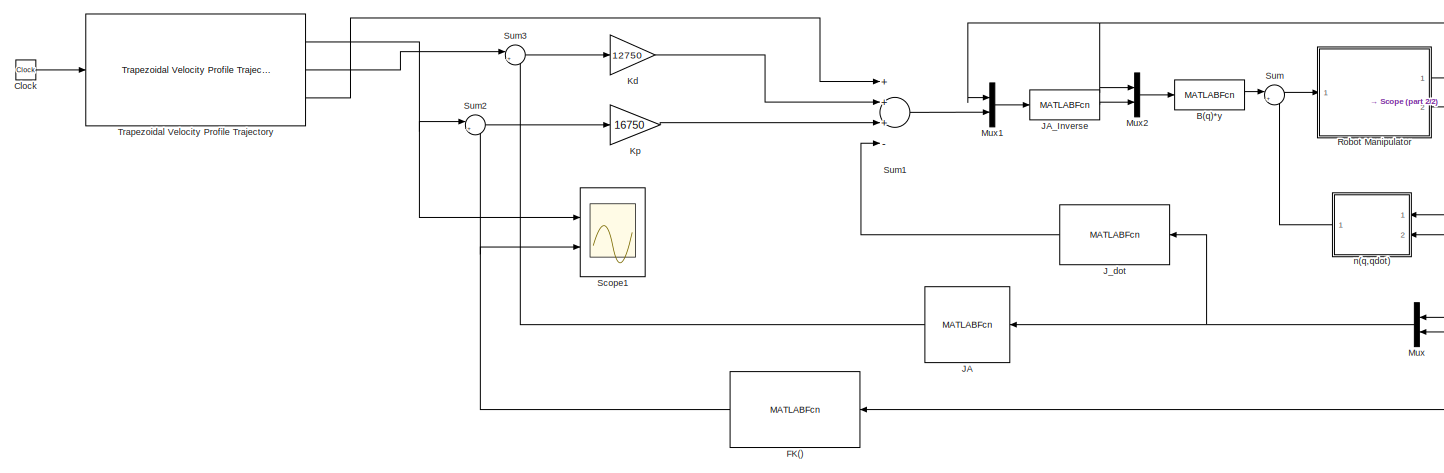
[diagram: root canvas - part 1/2, most of the canvas]
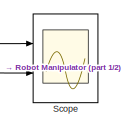
[diagram: root canvas - part 2/2, top right region]
MODEL slx_6c4f4f42cd4c
KIND model
CONFIG AbsTol = auto
CONFIG EnableMultiTasking = off
CONFIG FixedStep = auto
CONFIG MaxStep = auto
CONFIG MinStep = auto
CONFIG RelTol = 1e-3
CONFIG SampleTimeConstraint = Unconstrained
CONFIG Solver = VariableStepAuto
CONFIG SolverName = VariableStepAuto
CONFIG StartTime = 0.0
CONFIG StopTime = 10.0
BLOCK [MATLABFcn] B(q)*y
  MATLABFcn = B_matrix(u)*u(n_links+1:end,1)
  Ports = [1, 1]
BLOCK [Clock] Clock
BLOCK [MATLABFcn] FK()
  MATLABFcn = fwdKine(u)
  Ports = [1, 1]
BLOCK [MATLABFcn] JA
  MATLABFcn = analyticalJacobian(u)*u(n_links+1:end,1)
  Ports = [1, 1]
BLOCK [MATLABFcn] JA_Inverse
  MATLABFcn = inv(analyticalJacobian(u))*u(n_links+1:end,1)
  Ports = [1, 1]
BLOCK [MATLABFcn] J_dot
  MATLABFcn = JacobianDerivative(u)
  Ports = [1, 1]
BLOCK [Gain] Kd
  Gain = 12750
  OutDataTypeStr = Inherit: Inherit via internal rule
  ParamDataTypeStr = Inherit: Inherit via internal rule
  SaturateOnIntegerOverflow = off
BLOCK [Gain] Kp
  Gain = 16750
  OutDataTypeStr = Inherit: Inherit via internal rule
  ParamDataTypeStr = Inherit: Inherit via internal rule
  SaturateOnIntegerOverflow = off
BLOCK [Mux] Mux
  DisplayOption = bar
  Inputs = 2
  Ports = [2, 1]
BLOCK [Mux] Mux1
  DisplayOption = bar
  Inputs = 2
  Ports = [2, 1]
BLOCK [Mux] Mux2
  DisplayOption = bar
  Inputs = 2
  Ports = [2, 1]
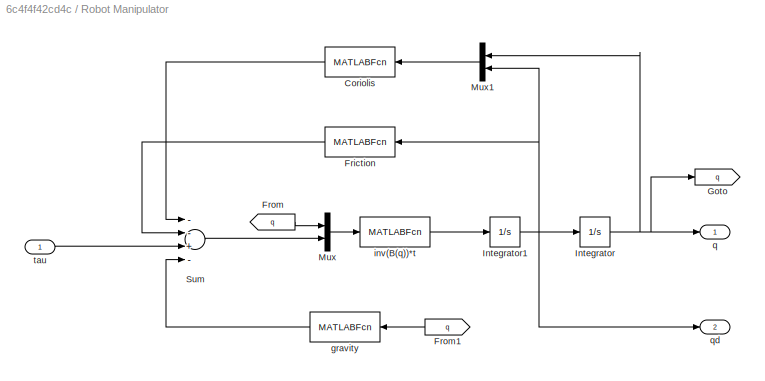
BLOCK [SubSystem] Robot Manipulator
  Ports = [1, 2]
  RequestExecContextInheritance = off
BLOCK [MATLABFcn] Robot Manipulator/Coriolis
  MATLABFcn = C_matrix(u)*u(n_links+1:end,1)
  Ports = [1, 1]
BLOCK [MATLABFcn] Robot Manipulator/Friction
  MATLABFcn = Friction(u)
  Ports = [1, 1]
BLOCK [From] Robot Manipulator/From
  GotoTag = q
BLOCK [From] Robot Manipulator/From1
  GotoTag = q
BLOCK [Goto] Robot Manipulator/Goto
  GotoTag = q
BLOCK [Integrator] Robot Manipulator/Integrator
  InitialCondition = [pi/3; -pi/3 ;0]
  Ports = [1, 1]
BLOCK [Integrator] Robot Manipulator/Integrator1
  InitialCondition = [0;0;0]
  Ports = [1, 1]
BLOCK [Mux] Robot Manipulator/Mux
  DisplayOption = bar
  Inputs = 2
  Ports = [2, 1]
BLOCK [Mux] Robot Manipulator/Mux1
  DisplayOption = bar
  Inputs = 2
  Ports = [2, 1]
BLOCK [Sum] Robot Manipulator/Sum
  Inputs = --+-
  Ports = [4, 1]
BLOCK [MATLABFcn] Robot Manipulator/gravity
  MATLABFcn = GravityVector(u)
  Ports = [1, 1]
BLOCK [MATLABFcn] Robot Manipulator/inv(B(q))*t
  MATLABFcn = inv(B_matrix(u))*u(n_links+1:end,1)
  Ports = [1, 1]
BLOCK [Outport] Robot Manipulator/q
  IconDisplay = Port number
BLOCK [Outport] Robot Manipulator/qd
  IconDisplay = Port number
  Port = 2
BLOCK [Inport] Robot Manipulator/tau
  IconDisplay = Port number
BLOCK [Scope] Scope
  Floating = off
  NumInputPorts = 2
  Ports = [2]
  ScopeSpecificationString = Simulink.scopes.TimeScopeBlockCfg('CurrentConfiguration', extmgr.ConfigurationSet(extmgr.Configuration('Core','General UI',true),extmgr.Configuration('Core','Source UI',true),extmgr.Configuration('Sources','WiredSimulink',true),extmgr.Configuration('Visuals','Time Domain',true,'SerializedDisplays',{struct('MinYLimReal','-3.41638','MaxYLimReal','4.32596','YLabelReal','','MinYLimMag','0.00000','MaxY...<+2075ch>
BLOCK [Scope] Scope1
  Floating = off
  NumInputPorts = 2
  Ports = [2]
  ScopeSpecificationString = Simulink.scopes.TimeScopeBlockCfg('CurrentConfiguration', extmgr.ConfigurationSet(extmgr.Configuration('Core','General UI',true),extmgr.Configuration('Core','Source UI',true),extmgr.Configuration('Sources','WiredSimulink',true,'DataLoggingVariableName','ScopeData1'),extmgr.Configuration('Visuals','Time Domain',true,'SerializedDisplays',{struct('MinYLimReal','-0.0854','MaxYLimReal','0.7686','YLabel...<+2167ch>
BLOCK [Sum] Sum
  IconShape = round
  InputSameDT = off
  Inputs = |++
  OutDataTypeStr = Inherit: Inherit via internal rule
  Ports = [2, 1]
  SaturateOnIntegerOverflow = off
BLOCK [Sum] Sum1
  Inputs = +++-
  Ports = [4, 1]
BLOCK [Sum] Sum2
  IconShape = round
  InputSameDT = off
  Inputs = |+-
  OutDataTypeStr = Inherit: Inherit via internal rule
  Ports = [2, 1]
  SaturateOnIntegerOverflow = off
BLOCK [Sum] Sum3
  IconShape = round
  InputSameDT = off
  Inputs = |+-
  OutDataTypeStr = Inherit: Inherit via internal rule
  Ports = [2, 1]
  SaturateOnIntegerOverflow = off
BLOCK [Reference] Trapezoidal Velocity Profile Trajectory  REF=robotcorelib/Trapezoidal Velocity Profile Trajectory
  Ports = [1, 3]
  SourceBlock = robotcorelib/Trapezoidal Velocity Profile Trajectory
  SourceProductBaseCode = RO
  SourceProductName = Robotics System Toolbox
  SourceType = robotics.slcore.internal.block.TrapVelTrajSys
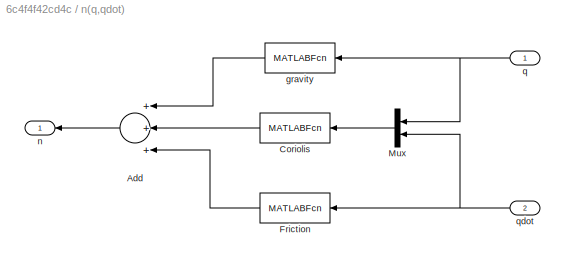
BLOCK [SubSystem] n(q,qdot)
  Ports = [2, 1]
  RequestExecContextInheritance = off
BLOCK [Sum] n(q,qdot)/Add
  InputSameDT = off
  Inputs = +++
  OutDataTypeStr = Inherit: Inherit via internal rule
  Ports = [3, 1]
  SaturateOnIntegerOverflow = off
BLOCK [MATLABFcn] n(q,qdot)/Coriolis
  MATLABFcn = C_matrix(u)*u(n_links+1:end,1)
  Ports = [1, 1]
BLOCK [MATLABFcn] n(q,qdot)/Friction
  MATLABFcn = Friction(u)
  Ports = [1, 1]
BLOCK [Mux] n(q,qdot)/Mux
  DisplayOption = bar
  Inputs = 2
  Ports = [2, 1]
BLOCK [MATLABFcn] n(q,qdot)/gravity
  MATLABFcn = GravityVector(u)
  Ports = [1, 1]
BLOCK [Outport] n(q,qdot)/n
  IconDisplay = Port number
BLOCK [Inport] n(q,qdot)/q
  IconDisplay = Port number
BLOCK [Inport] n(q,qdot)/qdot
  IconDisplay = Port number
  Port = 2
LINE B(q)*y:1 -> Sum:1
LINE Clock:1 -> Trapezoidal Velocity Profile Trajectory:1
NET FK():1 -> Scope1:2, Sum2:2
LINE JA:1 -> Sum3:2
LINE JA_Inverse:1 -> Mux2:2
LINE J_dot:1 -> Sum1:4
LINE Kd:1 -> Sum1:2
LINE Kp:1 -> Sum1:3
LINE Mux1:1 -> JA_Inverse:1
LINE Mux2:1 -> B(q)*y:1
NET Mux:1 -> JA:1, J_dot:1
LINE Robot Manipulator/Coriolis:1 -> Robot Manipulator/Sum:1
LINE Robot Manipulator/Friction:1 -> Robot Manipulator/Sum:2
LINE Robot Manipulator/From1:1 -> Robot Manipulator/gravity:1
LINE Robot Manipulator/From:1 -> Robot Manipulator/Mux:1
NET Robot Manipulator/Integrator1:1 -> Robot Manipulator/Friction:1, Robot Manipulator/Integrator:1, Robot Manipulator/Mux1:2, Robot Manipulator/qd:1
NET Robot Manipulator/Integrator:1 -> Robot Manipulator/Goto:1, Robot Manipulator/Mux1:1, Robot Manipulator/q:1
LINE Robot Manipulator/Mux1:1 -> Robot Manipulator/Coriolis:1
LINE Robot Manipulator/Mux:1 -> Robot Manipulator/inv(B(q))*t:1
LINE Robot Manipulator/Sum:1 -> Robot Manipulator/Mux:2
LINE Robot Manipulator/gravity:1 -> Robot Manipulator/Sum:4
LINE Robot Manipulator/inv(B(q))*t:1 -> Robot Manipulator/Integrator1:1
LINE Robot Manipulator/tau:1 -> Robot Manipulator/Sum:3
NET Robot Manipulator:1 -> FK():1, Mux1:1, Mux2:1, Mux:1, Scope:1, n(q,qdot):1
NET Robot Manipulator:2 -> Mux:2, Scope:2, n(q,qdot):2
LINE Sum1:1 -> Mux1:2
LINE Sum2:1 -> Kp:1
LINE Sum3:1 -> Kd:1
LINE Sum:1 -> Robot Manipulator:1
NET Trapezoidal Velocity Profile Trajectory:1 -> Scope1:1, Sum2:1
LINE Trapezoidal Velocity Profile Trajectory:2 -> Sum3:1
LINE Trapezoidal Velocity Profile Trajectory:3 -> Sum1:1
LINE n(q,qdot)/Add:1 -> n(q,qdot)/n:1
LINE n(q,qdot)/Coriolis:1 -> n(q,qdot)/Add:2
LINE n(q,qdot)/Friction:1 -> n(q,qdot)/Add:3
LINE n(q,qdot)/Mux:1 -> n(q,qdot)/Coriolis:1
LINE n(q,qdot)/gravity:1 -> n(q,qdot)/Add:1
NET n(q,qdot)/q:1 -> n(q,qdot)/Mux:1, n(q,qdot)/gravity:1
NET n(q,qdot)/qdot:1 -> n(q,qdot)/Friction:1, n(q,qdot)/Mux:2
LINE n(q,qdot):1 -> Sum:2
note: NET lines group one-source signal fan-out (src -> all destinations, sorted); 1:1 wires keep LINE
